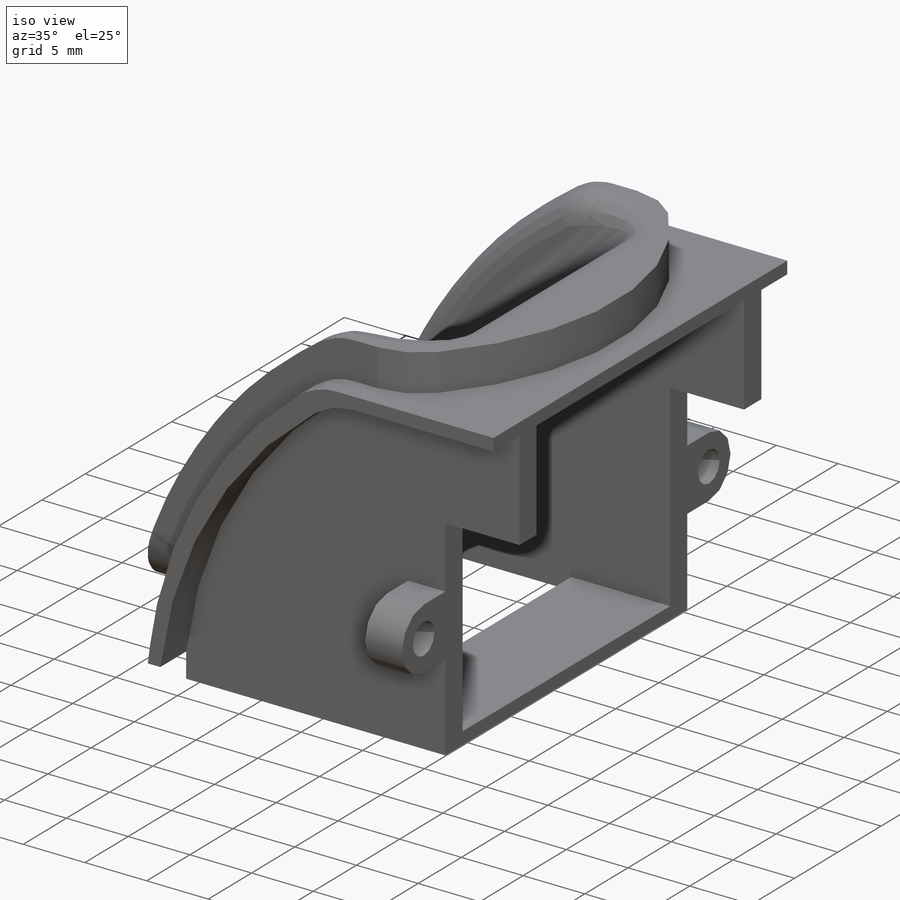
[diagram: iso view]
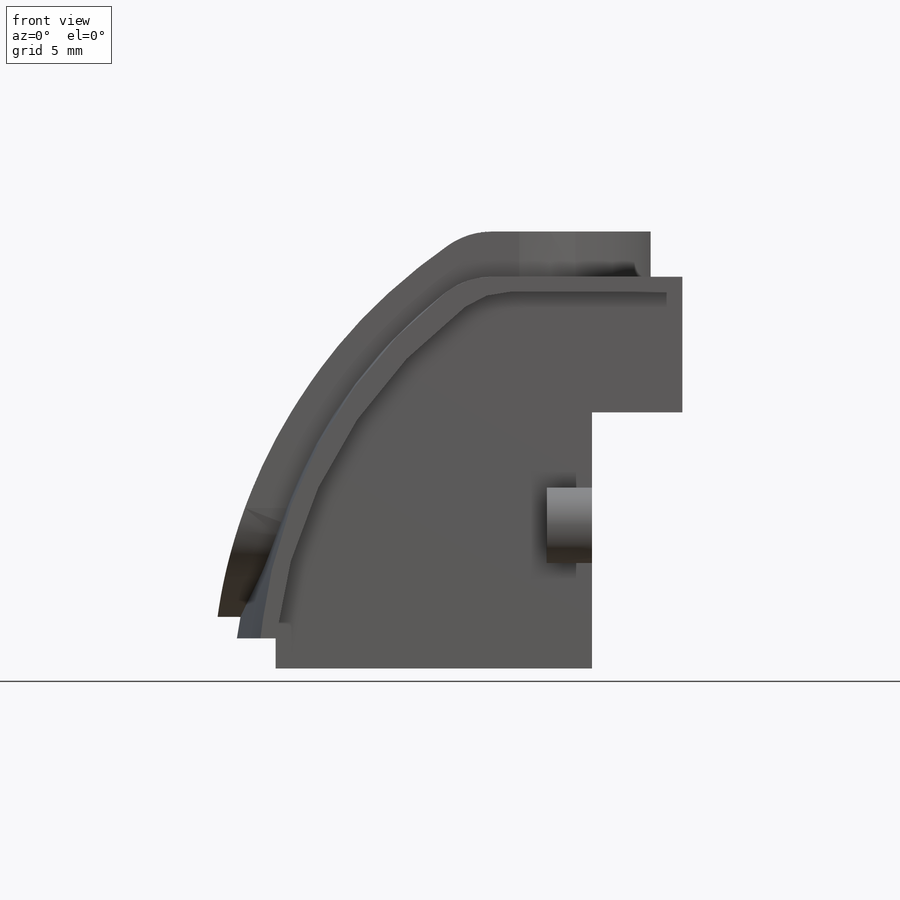
[diagram: front view]
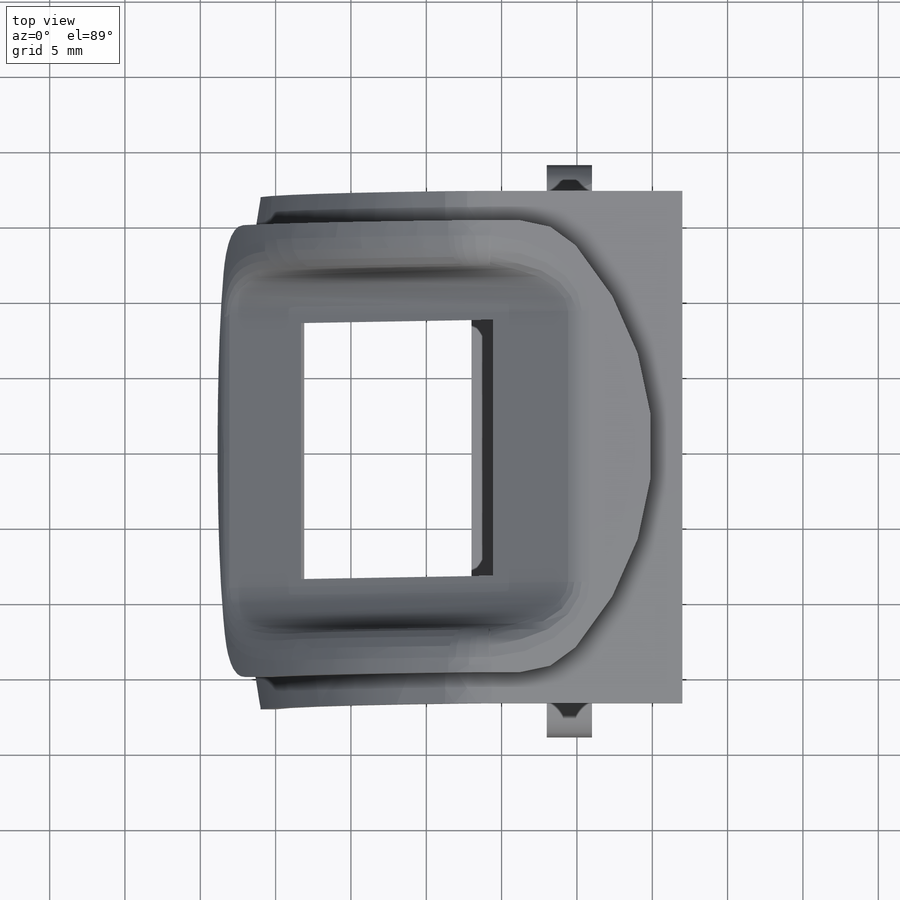
[diagram: top view]
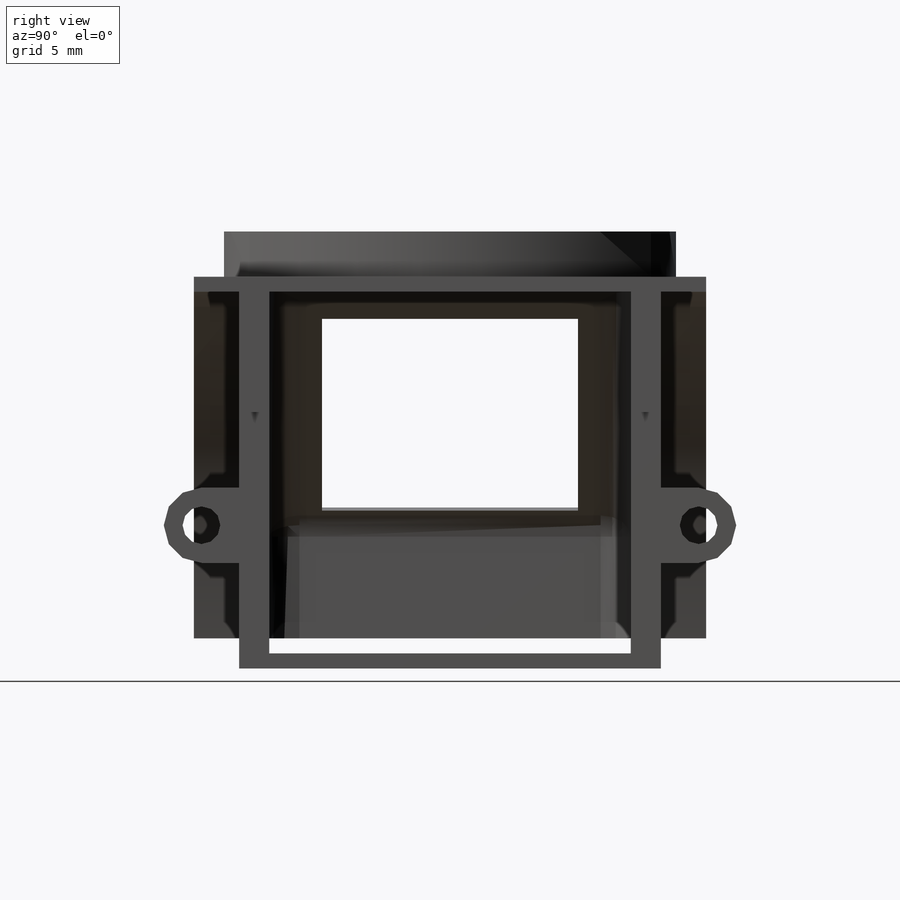
[diagram: right view]
SOLIDWORKS PART (.sldprt)
format: sldprt  version: not decoded by parser v0  size: 2,019,328 bytes
history: native  units: mm
features: sketch x19, cut_extrude x8, fillet x6, plane x5, extrude x2, sweep x2, material x1, hole x1, thread x1, mirror x1 (+12 scaffold rows collapsed)
feature tree (58):
  scaffold x12  (default folders/planes/origin — collapsed)
  material  "PVC 0.007 plastifié"
  plane  "Face"
  plane  "Dessus"
  plane  "Droite"
  sketch  "Esquisse1"  dims[c1.D5=60.0mm c1.D7=32.0mm c1.D1=21.0mm c1.D2=17.0mm c1.D3=8.0mm c1.D4=6.0mm c1.D6=13.0mm c2.D5=2.0mm]
  extrude  "Extrusion1"  Depth=28mm
  sketch  "Esquisse9"  dims[D1=32.0mm]
  sketch  "Esquisse10"  dims[D1=3.0mm D2=1.0mm]
  sweep  "Balayage3"
  plane  "Plan3"  Offset=2mm
  sketch  "Esquisse11"  dims[c1.D5=40.0mm c1.D1=2.0mm c1.D2=3.0mm c1.D3=22.0mm c1.D4=~15.189986mm c2.D5=~10.292015mm]
  sketch  "Esquisse12"  dims[D1=30.0mm D2=3.0mm]
  sweep  "Balayage5"
  sketch  "Esquisse24"  dims[c1.D2=20.0mm c1.D1=~6.099955mm c1.D3=~5.170685mm c2.D1=16.0mm c2.D3=5.0mm]
  cut_extrude  "Enlèv. mat.-Extru.4"  [1 undecoded]
  plane  "Plan11"
  sketch  "Esquisse54"  dims[D1=30.125mm]
  cut_extrude  "Enlèv. mat.-Extru.38"  [1 undecoded]
  sketch  "Esquisse50"  dims[D1=1.0mm]
  sketch  "Esquisse48"  dims[c1.D1=86.0mm c1.D4=86.0mm c2.D1=86.0mm c2.D2=0.1mm c2.D3=0.1mm]
  sketch  "Esquisse49"
  sketch  "Esquisse40"  dims[c1.D1=6.0mm c1.D2=~4.645163mm c1.D3=~33.174442mm c2.D3=40.0deg c2.D4=1.0mm c2.D5=~19.237751mm c2.D2=1.0mm c3.D4=~20.929631mm c3.D5=~20.929631mm c3.D1=~37.856811mm c4.D1=48.37deg c5.D1=~52.142102mm c6.D1=45.0deg c6.D2=5.0mm]
  cut_extrude  "Enlèv. mat.-Extru.20"  Depth=24mm
  sketch  "Esquisse42"  dims[c1.D2=~22.056785mm c2.D2=~121.101668deg c3.D2=~13.306379mm c4.D2=~58.898332deg c4.D1=~22.056785mm c5.D1=135.0deg c5.D2=~25.759688mm c6.D2=45.0deg c6.D3=0.3mm c6.D4=1.0mm c6.D1=1.0mm c6.D5=~15.424264mm c6.D6=~17.599682mm c6.D7=~26.814532mm c6.D8=~27.570188mm c7.D1=1.0mm]
  cut_extrude  "Enlèv. mat.-Extru.24"  Depth=24mm
  sketch  "Esquisse29"  dims[D1=2.0mm D2=2.0mm D3=12.0mm]
  sketch  "Esquisse31"  dims[c1.D1=2.0mm c1.D2=2.0mm c2.D1=2.0mm]
  cut_extrude  "Enlèv. mat.-Extru.11"  [1 undecoded]
  sketch  "Esquisse35"  dims[D1=17.0mm D2=18.0mm D3=8.0mm]
  fillet  "Congé4"  Radius=5mm
  fillet  "Congé5"  Radius=5mm
  cut_extrude  "Enlèv. mat.-Extru.21"  [1 undecoded]
  fillet  "Congé14"  Radius=3mm
  fillet  "Congé8"  Radius=2mm
  cut_extrude  "Enlèv. mat.-Extru.25"  [1 undecoded]
  fillet  "Congé15"  Radius=2mm
  sketch  "Esquisse43"  dims[D3=2.5mm D1=2.5mm D2=7.0mm]
  extrude  "Extrusion2"  Depth=3mm
  hole  "Trou taraudé M31"  Diameter=2.5mm Depth=20.507626mm
  sketch  "Esquisse3D1"
  sketch  "Esquisse44"  dims[hole-wizard template sketch: 60 standard entries collapsed; hole parameters kept: c18.Profondeur du trou pour taraudage jusqu'au prochain=~20.507626mm]
  thread  "Filetage de perçage3"  Diameter=3mm  [1 undecoded]
  mirror  "Symétrie1"
  sketch  "Esquisse51"  dims[D1=24.0mm]
  cut_extrude  "Enlèv. mat.-Extru.31"  [1 undecoded]
  fillet  "Congé22"  Radius=5mm
decode coverage: 29 of 40 modeling features carry decoded parameters
note: ~ marks probable driven/reference dimensions
note: 7 parameter values undecoded
summary: no parameter record found for 6 features
note: suppression state not decoded; provenance and decode notes live in map.json
